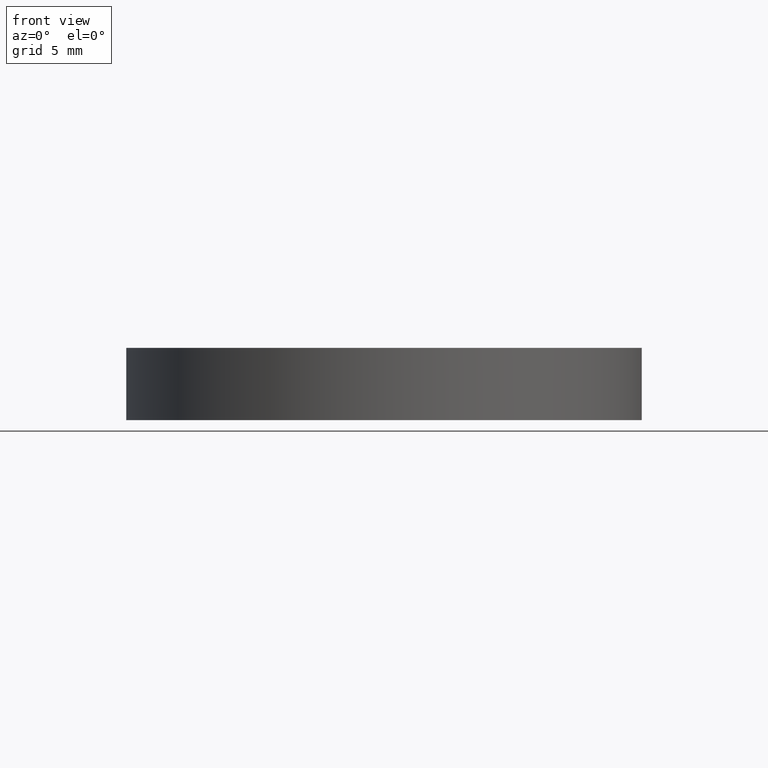
[diagram: clean part render]
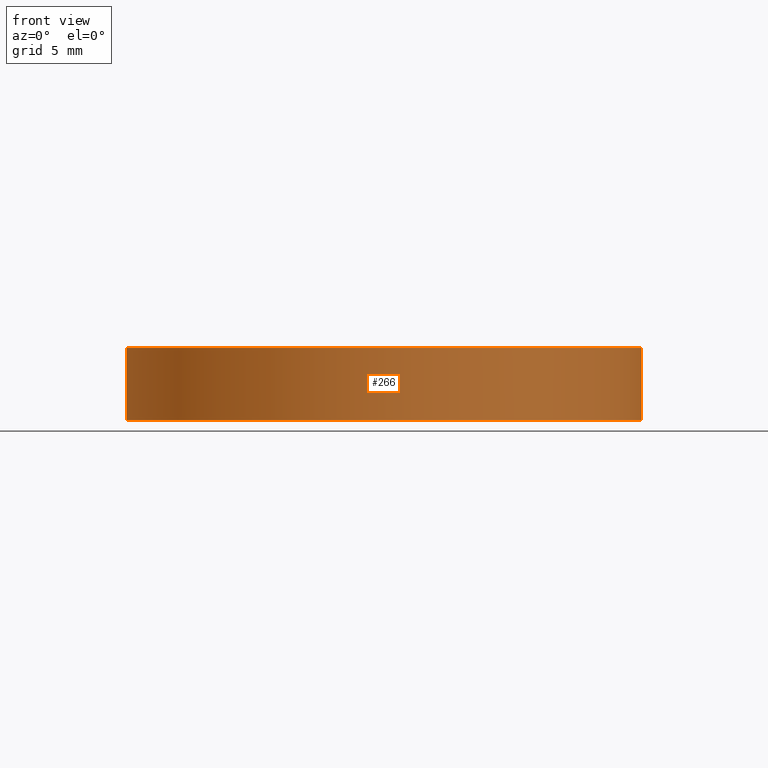
[diagram: same view with one face highlighted and labeled with its STEP entity id]
A machine part, front view. The second image highlights one B-rep face of the part: STEP entity #266.
In plain terms, the highlighted cylindrical surface (partial cylindrical patch) has radius 12.5 mm, axis along (-0, -0, -1).
Its self-contained STEP definition (entity closure, byte-faithful):
#1 = CARTESIAN_POINT ( 'NONE',  ( -12.50000000000000000, 0.000000000000000000, 0.000000000000000000 ) ) ;
#5 = AXIS2_PLACEMENT_3D ( 'NONE', #350, #61, #188 ) ;
#17 = AXIS2_PLACEMENT_3D ( 'NONE', #206, #388, #73 ) ;
#29 = ORIENTED_EDGE ( 'NONE', *, *, #321, .T. ) ;
#42 = CIRCLE ( 'NONE', #17, 12.50000000000000000 ) ;
#53 = ORIENTED_EDGE ( 'NONE', *, *, #173, .F. ) ;
#56 = VERTEX_POINT ( 'NONE', #349 ) ;
#61 = DIRECTION ( 'NONE',  ( 0.000000000000000000, 0.000000000000000000, 1.000000000000000000 ) ) ;
#73 = DIRECTION ( 'NONE',  ( 1.000000000000000000, 0.000000000000000000, 0.000000000000000000 ) ) ;
#92 = CARTESIAN_POINT ( 'NONE',  ( 0.000000000000000000, 0.000000000000000000, 3.500000000000000000 ) ) ;
#101 = VERTEX_POINT ( 'NONE', #1 ) ;
#105 = DIRECTION ( 'NONE',  ( -0.000000000000000000, -0.000000000000000000, -1.000000000000000000 ) ) ;
#111 = EDGE_CURVE ( 'NONE', #56, #154, #42, .T. ) ;
#146 = CYLINDRICAL_SURFACE ( 'NONE', #159, 12.50000000000000000 ) ;
#154 = VERTEX_POINT ( 'NONE', #168 ) ;
#159 = AXIS2_PLACEMENT_3D ( 'NONE', #92, #170, #333 ) ;
#168 = CARTESIAN_POINT ( 'NONE',  ( 12.50000000000000000, 1.530808498934191521E-15, 3.500000000000000000 ) ) ;
#170 = DIRECTION ( 'NONE',  ( -0.000000000000000000, -0.000000000000000000, -1.000000000000000000 ) ) ;
#173 = EDGE_CURVE ( 'NONE', #154, #286, #254, .T. ) ;
#188 = DIRECTION ( 'NONE',  ( 1.000000000000000000, 0.000000000000000000, 0.000000000000000000 ) ) ;
#206 = CARTESIAN_POINT ( 'NONE',  ( 0.000000000000000000, 0.000000000000000000, 3.500000000000000000 ) ) ;
#217 = EDGE_LOOP ( 'NONE', ( #53, #414, #29, #417 ) ) ;
#218 = LINE ( 'NONE', #382, #229 ) ;
#229 = VECTOR ( 'NONE', #281, 1000.000000000000000 ) ;
#254 = LINE ( 'NONE', #386, #257 ) ;
#257 = VECTOR ( 'NONE', #105, 1000.000000000000000 ) ;
#266 = ADVANCED_FACE ( 'NONE', ( #399 ), #146, .T. ) ;
#281 = DIRECTION ( 'NONE',  ( -0.000000000000000000, -0.000000000000000000, -1.000000000000000000 ) ) ;
#286 = VERTEX_POINT ( 'NONE', #401 ) ;
#316 = CIRCLE ( 'NONE', #5, 12.50000000000000000 ) ;
#321 = EDGE_CURVE ( 'NONE', #56, #101, #218, .T. ) ;
#333 = DIRECTION ( 'NONE',  ( -1.000000000000000000, 0.000000000000000000, 0.000000000000000000 ) ) ;
#349 = CARTESIAN_POINT ( 'NONE',  ( -12.50000000000000000, 0.000000000000000000, 3.500000000000000000 ) ) ;
#350 = CARTESIAN_POINT ( 'NONE',  ( 0.000000000000000000, 0.000000000000000000, 0.000000000000000000 ) ) ;
#382 = CARTESIAN_POINT ( 'NONE',  ( -12.50000000000000000, 0.000000000000000000, 3.500000000000000000 ) ) ;
#386 = CARTESIAN_POINT ( 'NONE',  ( 12.50000000000000000, 1.530808498934191521E-15, 3.500000000000000000 ) ) ;
#388 = DIRECTION ( 'NONE',  ( 0.000000000000000000, 0.000000000000000000, 1.000000000000000000 ) ) ;
#390 = EDGE_CURVE ( 'NONE', #101, #286, #316, .T. ) ;
#399 = FACE_OUTER_BOUND ( 'NONE', #217, .T. ) ;
#401 = CARTESIAN_POINT ( 'NONE',  ( 12.50000000000000000, 1.530808498934191521E-15, 0.000000000000000000 ) ) ;
#414 = ORIENTED_EDGE ( 'NONE', *, *, #111, .F. ) ;
#417 = ORIENTED_EDGE ( 'NONE', *, *, #390, .T. ) ;